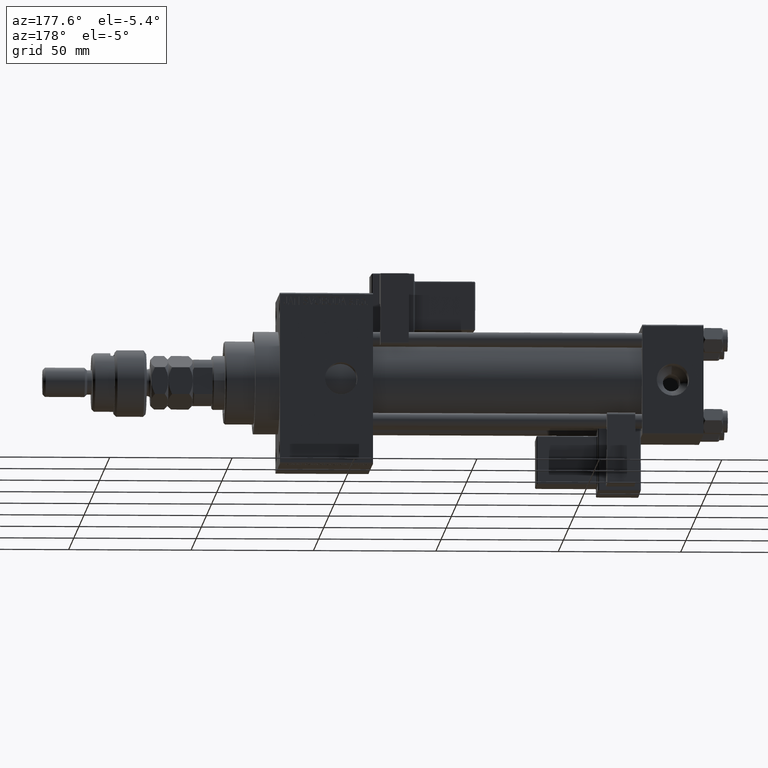
[diagram: clean part render]
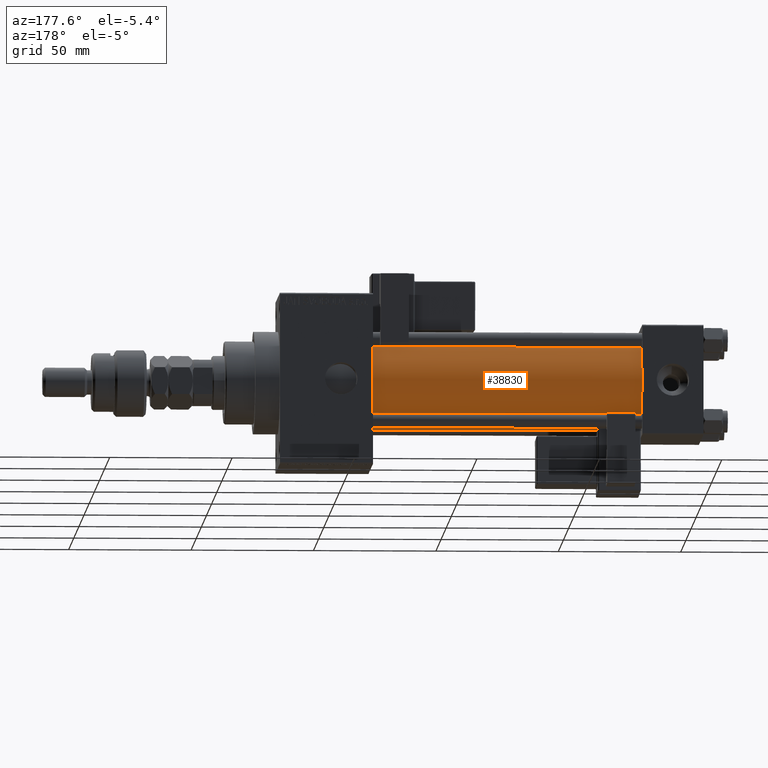
[diagram: same view with one face highlighted and labeled with its STEP entity id]
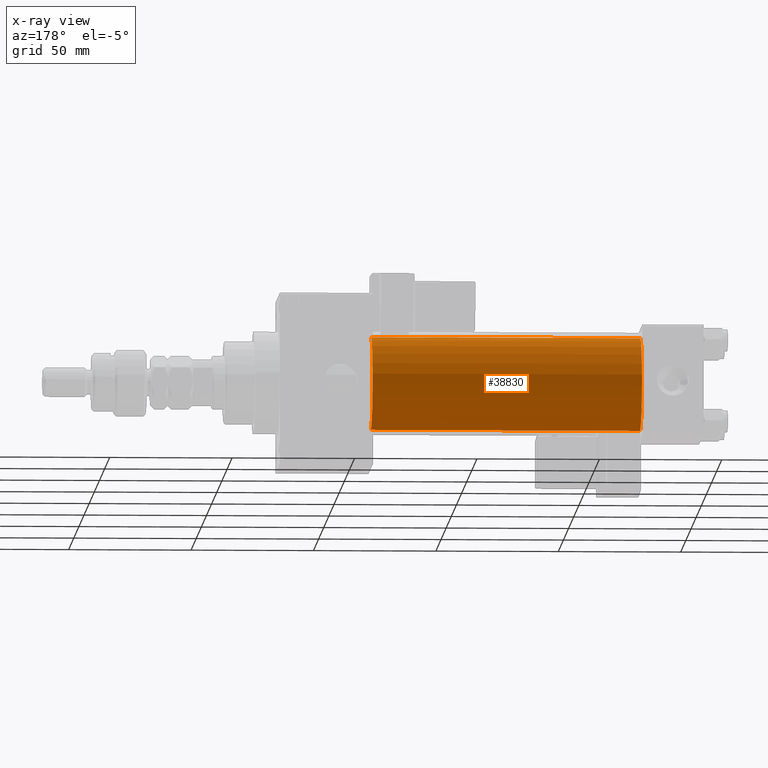
[diagram: x-ray of the same camera — body ghosted, the highlighted face saturated]
A machine part, auxiliary view. The second image highlights one B-rep face of the part: STEP entity #38830.
The next image is the same camera in x-ray: the body ghosted, the highlighted face saturated — about 0% of this face is hidden behind the body in this view.
In plain terms, the highlighted cylindrical surface (partial cylindrical patch) has radius 19 mm, axis along (-1, -0, -0).
Its self-contained STEP definition (entity closure, byte-faithful):
#1747 = FACE_OUTER_BOUND ( 'NONE', #37205, .T. ) ;
#4165 = ORIENTED_EDGE ( 'NONE', *, *, #39125, .T. ) ;
#4372 = VECTOR ( 'NONE', #7530, 1000.000000000000000 ) ;
#4460 = DIRECTION ( 'NONE',  ( 0.000000000000000000, 0.000000000000000000, 1.000000000000000000 ) ) ;
#6848 = DIRECTION ( 'NONE',  ( 1.000000000000000000, 0.000000000000000000, 0.000000000000000000 ) ) ;
#7530 = DIRECTION ( 'NONE',  ( -1.000000000000000000, -0.000000000000000000, -0.000000000000000000 ) ) ;
#9726 = CARTESIAN_POINT ( 'NONE',  ( 135.0000000000000000, -2.752562955852396712E-16, -19.00000000000000000 ) ) ;
#11196 = AXIS2_PLACEMENT_3D ( 'NONE', #30319, #26752, #51914 ) ;
#12080 = VERTEX_POINT ( 'NONE', #40843 ) ;
#13340 = VERTEX_POINT ( 'NONE', #9726 ) ;
#13638 = VECTOR ( 'NONE', #29039, 1000.000000000000000 ) ;
#15547 = CARTESIAN_POINT ( 'NONE',  ( 135.0000000000000000, -2.602085213965210642E-15, 19.00000000000000000 ) ) ;
#21350 = LINE ( 'NONE', #46551, #13638 ) ;
#21553 = CYLINDRICAL_SURFACE ( 'NONE', #11196, 19.00000000000000000 ) ;
#23876 = CARTESIAN_POINT ( 'NONE',  ( 135.0000000000000000, -2.602085213965210642E-15, 0.000000000000000000 ) ) ;
#23992 = EDGE_CURVE ( 'NONE', #13340, #38597, #44840, .T. ) ;
#26752 = DIRECTION ( 'NONE',  ( -1.000000000000000000, -0.000000000000000000, -0.000000000000000000 ) ) ;
#28137 = LINE ( 'NONE', #31959, #4372 ) ;
#29039 = DIRECTION ( 'NONE',  ( -1.000000000000000000, -0.000000000000000000, -0.000000000000000000 ) ) ;
#30319 = CARTESIAN_POINT ( 'NONE',  ( 135.0000000000000000, -2.602085213965210642E-15, 0.000000000000000000 ) ) ;
#31087 = EDGE_CURVE ( 'NONE', #38597, #36035, #21350, .T. ) ;
#31959 = CARTESIAN_POINT ( 'NONE',  ( 135.0000000000000000, -2.752562955852396712E-16, -19.00000000000000000 ) ) ;
#32750 = CARTESIAN_POINT ( 'NONE',  ( 24.99999999999999289, -2.602085213965210642E-15, 0.000000000000000000 ) ) ;
#33295 = DIRECTION ( 'NONE',  ( 1.000000000000000000, -0.000000000000000000, 0.000000000000000000 ) ) ;
#35851 = ORIENTED_EDGE ( 'NONE', *, *, #31087, .F. ) ;
#36035 = VERTEX_POINT ( 'NONE', #53227 ) ;
#36483 = DIRECTION ( 'NONE',  ( 0.000000000000000000, 0.000000000000000000, -1.000000000000000000 ) ) ;
#36513 = ORIENTED_EDGE ( 'NONE', *, *, #23992, .F. ) ;
#37205 = EDGE_LOOP ( 'NONE', ( #36513, #42035, #4165, #35851 ) ) ;
#38597 = VERTEX_POINT ( 'NONE', #15547 ) ;
#38830 = ADVANCED_FACE ( 'NONE', ( #1747 ), #21553, .T. ) ;
#39125 = EDGE_CURVE ( 'NONE', #12080, #36035, #53207, .T. ) ;
#40843 = CARTESIAN_POINT ( 'NONE',  ( 24.99999999999999289, -2.752562955852396712E-16, -19.00000000000000000 ) ) ;
#42035 = ORIENTED_EDGE ( 'NONE', *, *, #44129, .T. ) ;
#44129 = EDGE_CURVE ( 'NONE', #13340, #12080, #28137, .T. ) ;
#44840 = CIRCLE ( 'NONE', #49206, 19.00000000000000000 ) ;
#45366 = AXIS2_PLACEMENT_3D ( 'NONE', #32750, #33295, #4460 ) ;
#46551 = CARTESIAN_POINT ( 'NONE',  ( 135.0000000000000000, -2.602085213965210642E-15, 19.00000000000000000 ) ) ;
#49206 = AXIS2_PLACEMENT_3D ( 'NONE', #23876, #6848, #36483 ) ;
#51914 = DIRECTION ( 'NONE',  ( 0.000000000000000000, 0.000000000000000000, 1.000000000000000000 ) ) ;
#53207 = CIRCLE ( 'NONE', #45366, 19.00000000000000000 ) ;
#53227 = CARTESIAN_POINT ( 'NONE',  ( 24.99999999999999289, -2.602085213965210642E-15, 19.00000000000000000 ) ) ;